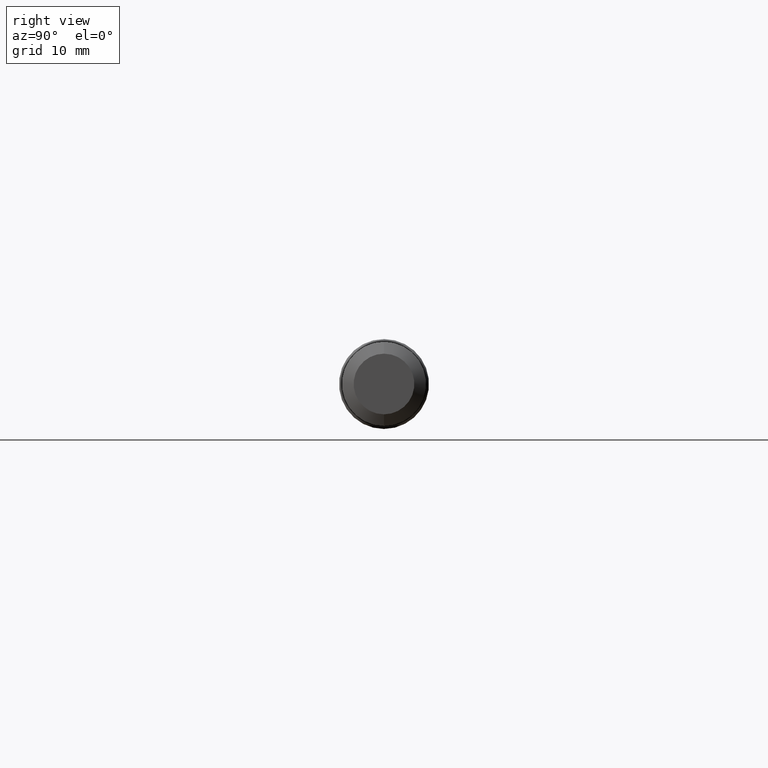
[diagram: clean part render]
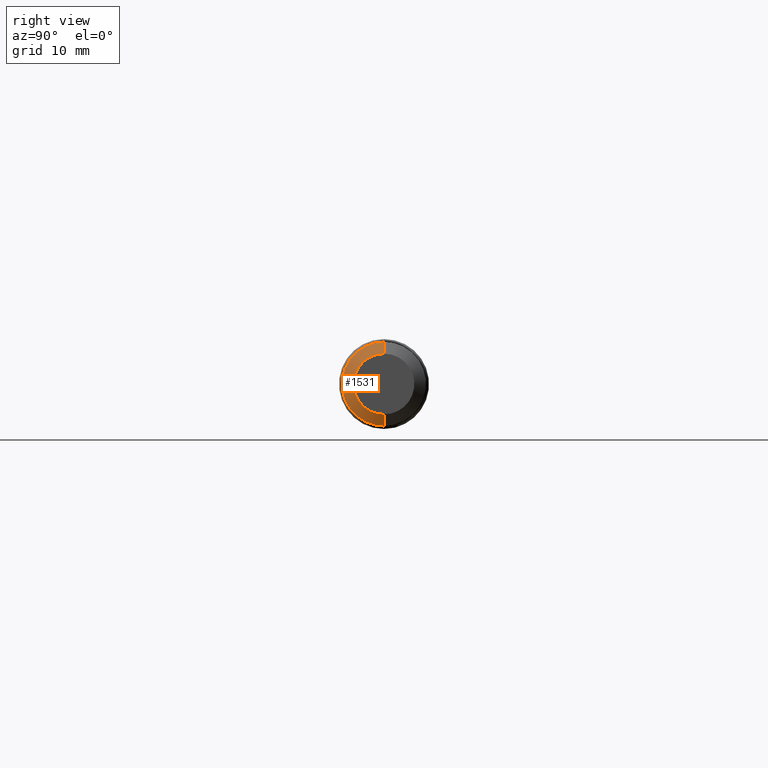
[diagram: same view with one face highlighted and labeled with its STEP entity id]
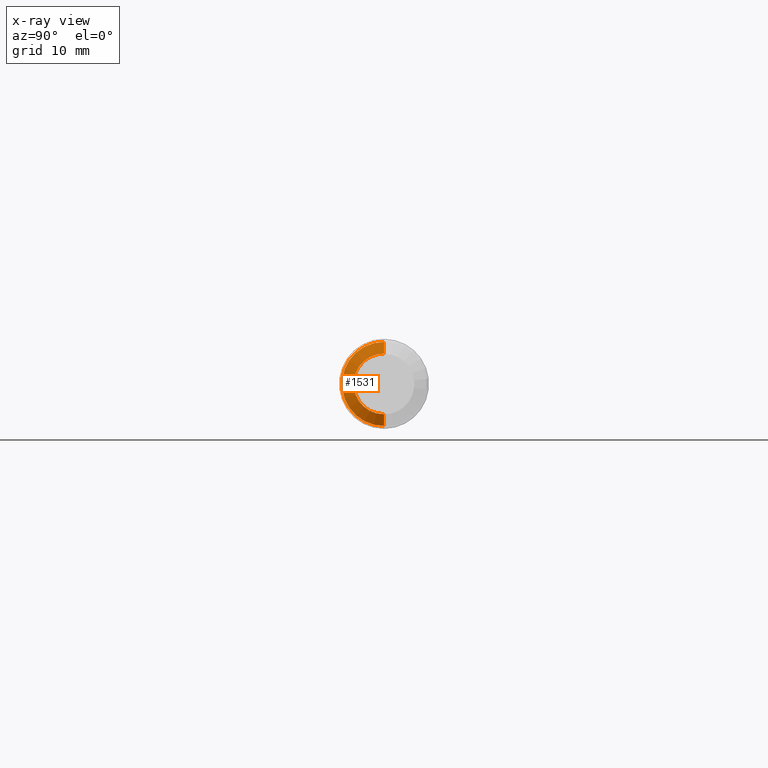
[diagram: x-ray of the same camera — body ghosted, the highlighted face saturated]
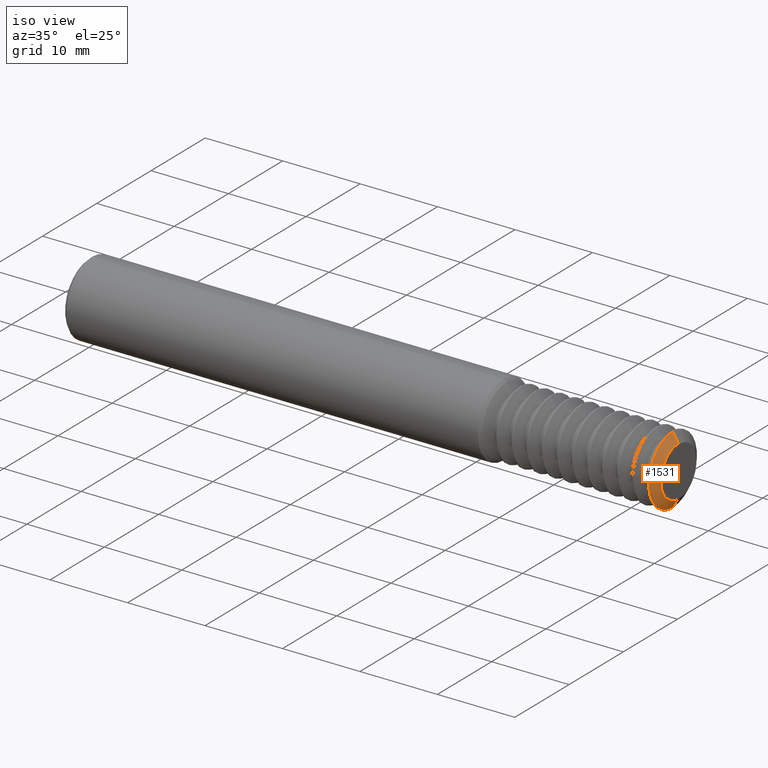
[diagram: same view with one face highlighted and labeled with its STEP entity id]
A machine part, right view. The second image highlights one B-rep face of the part: STEP entity #1531.
The next image is the same camera in x-ray: the body ghosted, the highlighted face saturated — about 0% of this face is hidden behind the body in this view.
A second angle (iso view) of the same face is appended — the face is thin or edge-on in the first view.
In plain terms, the highlighted conical surface has half-angle 60.25 deg.
Its self-contained STEP definition (entity closure, byte-faithful):
#82 = ORIENTED_EDGE ( 'NONE', *, *, #1092, .F. ) ;
#146 = CIRCLE ( 'NONE', #479, 0.1263398999376476595 ) ;
#151 = LINE ( 'NONE', #2186, #2384 ) ;
#255 = DIRECTION ( 'NONE',  ( 0.000000000000000000, 0.000000000000000000, 1.000000000000000000 ) ) ;
#400 = DIRECTION ( 'NONE',  ( -0.4962165036752012037, 1.063236899187659723E-16, -0.8681988144891462644 ) ) ;
#479 = AXIS2_PLACEMENT_3D ( 'NONE', #623, #1265, #255 ) ;
#540 = VERTEX_POINT ( 'NONE', #1519 ) ;
#585 = ORIENTED_EDGE ( 'NONE', *, *, #2349, .F. ) ;
#623 = CARTESIAN_POINT ( 'NONE',  ( 2.995961538461538343, 0.000000000000000000, 0.000000000000000000 ) ) ;
#627 = EDGE_CURVE ( 'NONE', #1101, #540, #1560, .T. ) ;
#633 = VERTEX_POINT ( 'NONE', #773 ) ;
#688 = ORIENTED_EDGE ( 'NONE', *, *, #627, .T. ) ;
#745 = CARTESIAN_POINT ( 'NONE',  ( 2.995961538461538343, 0.000000000000000000, 0.1263398999376476595 ) ) ;
#773 = CARTESIAN_POINT ( 'NONE',  ( 2.968150000000001398, 2.143131898507863675E-17, -0.1749999999999996281 ) ) ;
#955 = DIRECTION ( 'NONE',  ( -1.000000000000000000, -0.000000000000000000, -0.000000000000000000 ) ) ;
#1006 = CARTESIAN_POINT ( 'NONE',  ( 2.956719058252696986, 0.000000000000000000, 0.1949999999999999789 ) ) ;
#1092 = EDGE_CURVE ( 'NONE', #1507, #633, #151, .T. ) ;
#1101 = VERTEX_POINT ( 'NONE', #745 ) ;
#1108 = AXIS2_PLACEMENT_3D ( 'NONE', #2367, #1132, #2190 ) ;
#1132 = DIRECTION ( 'NONE',  ( -1.000000000000000000, -0.000000000000000000, -0.000000000000000000 ) ) ;
#1165 = FACE_OUTER_BOUND ( 'NONE', #1219, .T. ) ;
#1219 = EDGE_LOOP ( 'NONE', ( #82, #1340, #688, #585 ) ) ;
#1265 = DIRECTION ( 'NONE',  ( -1.000000000000000000, -0.000000000000000000, -0.000000000000000000 ) ) ;
#1278 = EDGE_CURVE ( 'NONE', #1507, #1101, #146, .T. ) ;
#1280 = CIRCLE ( 'NONE', #1108, 0.1749999999999999889 ) ;
#1340 = ORIENTED_EDGE ( 'NONE', *, *, #1278, .T. ) ;
#1348 = CARTESIAN_POINT ( 'NONE',  ( 2.956719058252696986, 0.000000000000000000, 0.000000000000000000 ) ) ;
#1447 = AXIS2_PLACEMENT_3D ( 'NONE', #1348, #955, #2587 ) ;
#1507 = VERTEX_POINT ( 'NONE', #1968 ) ;
#1519 = CARTESIAN_POINT ( 'NONE',  ( 2.968150000000001398, 0.000000000000000000, 0.1749999999999996281 ) ) ;
#1531 = ADVANCED_FACE ( 'NONE', ( #1165 ), #2606, .T. ) ;
#1560 = LINE ( 'NONE', #1006, #1690 ) ;
#1690 = VECTOR ( 'NONE', #1805, 39.37007874015748143 ) ;
#1805 = DIRECTION ( 'NONE',  ( -0.4962165036752012037, 0.000000000000000000, 0.8681988144891462644 ) ) ;
#1968 = CARTESIAN_POINT ( 'NONE',  ( 2.995961538461538343, 1.547217540632370930E-17, -0.1263398999376476595 ) ) ;
#2186 = CARTESIAN_POINT ( 'NONE',  ( 2.956719058252696986, 2.388061258337338397E-17, -0.1949999999999999789 ) ) ;
#2190 = DIRECTION ( 'NONE',  ( 0.000000000000000000, 0.000000000000000000, 1.000000000000000000 ) ) ;
#2349 = EDGE_CURVE ( 'NONE', #633, #540, #1280, .T. ) ;
#2367 = CARTESIAN_POINT ( 'NONE',  ( 2.968150000000001398, 0.000000000000000000, 0.000000000000000000 ) ) ;
#2384 = VECTOR ( 'NONE', #400, 39.37007874015748143 ) ;
#2587 = DIRECTION ( 'NONE',  ( 0.000000000000000000, 0.000000000000000000, 1.000000000000000000 ) ) ;
#2606 = CONICAL_SURFACE ( 'NONE', #1447, 0.1949999999999999789, 1.051560874326591621 ) ;